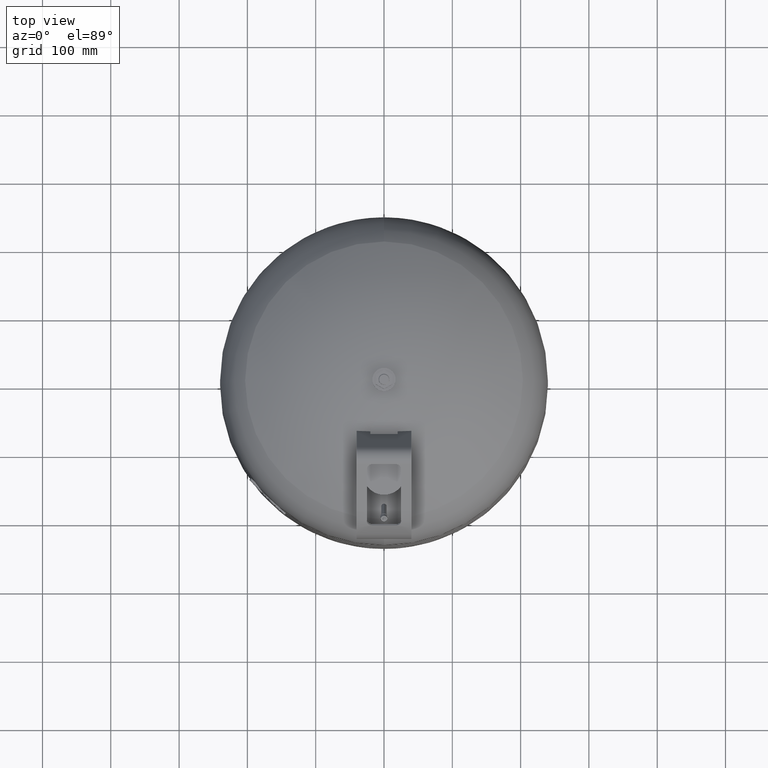
[diagram: clean part render]
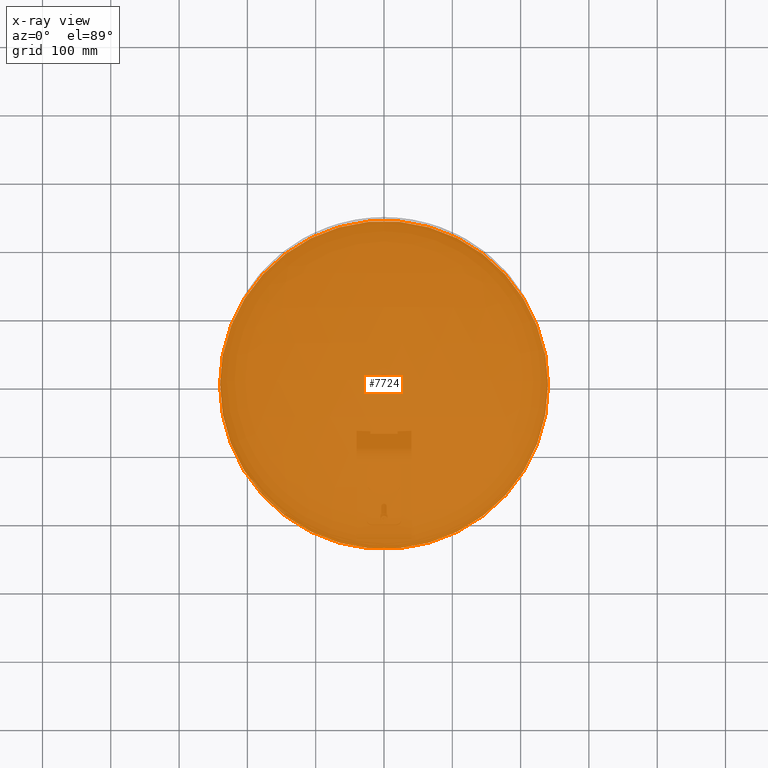
[diagram: x-ray — body ghosted, one internal face saturated and labeled with its STEP entity id]
A machine part, top view, then the same camera in x-ray: the body is ghosted and one INTERNAL B-rep face — a face not visible from any outside direction — is saturated and labeled: STEP entity #7724.
In plain terms, the highlighted planar face has unit normal (0, 0, 1).
Its self-contained STEP definition (entity closure, byte-faithful):
#7562=CARTESIAN_POINT('',(-240.0,0.0,324.0));
#7563=VERTEX_POINT('',#7562);
#7572=CARTESIAN_POINT('',(240.0,2.939055E-014,324.0));
#7573=VERTEX_POINT('',#7572);
#7574=CARTESIAN_POINT('',(0.0,0.0,324.0));
#7575=DIRECTION('',(0.0,0.0,1.0));
#7576=DIRECTION('',(-1.0,0.0,0.0));
#7577=AXIS2_PLACEMENT_3D('',#7574,#7575,#7576);
#7578=CIRCLE('',#7577,240.0);
#7579=EDGE_CURVE('',#7573,#7563,#7578,.T.);
#7705=CARTESIAN_POINT('',(0.0,0.0,324.0));
#7706=DIRECTION('',(0.0,0.0,1.0));
#7707=DIRECTION('',(-1.0,0.0,0.0));
#7708=AXIS2_PLACEMENT_3D('',#7705,#7706,#7707);
#7709=CIRCLE('',#7708,240.0);
#7710=EDGE_CURVE('',#7563,#7573,#7709,.T.);
#7715=CARTESIAN_POINT('',(-119.999999999999990,0.0,324.0));
#7716=DIRECTION('',(0.0,0.0,1.0));
#7717=DIRECTION('',(0.0,-1.0,0.0));
#7718=AXIS2_PLACEMENT_3D('',#7715,#7716,#7717);
#7719=PLANE('',#7718);
#7720=ORIENTED_EDGE('',*,*,#7710,.T.);
#7721=ORIENTED_EDGE('',*,*,#7579,.T.);
#7722=EDGE_LOOP('',(#7720,#7721));
#7723=FACE_OUTER_BOUND('',#7722,.T.);
#7724=ADVANCED_FACE('',(#7723),#7719,.T.);